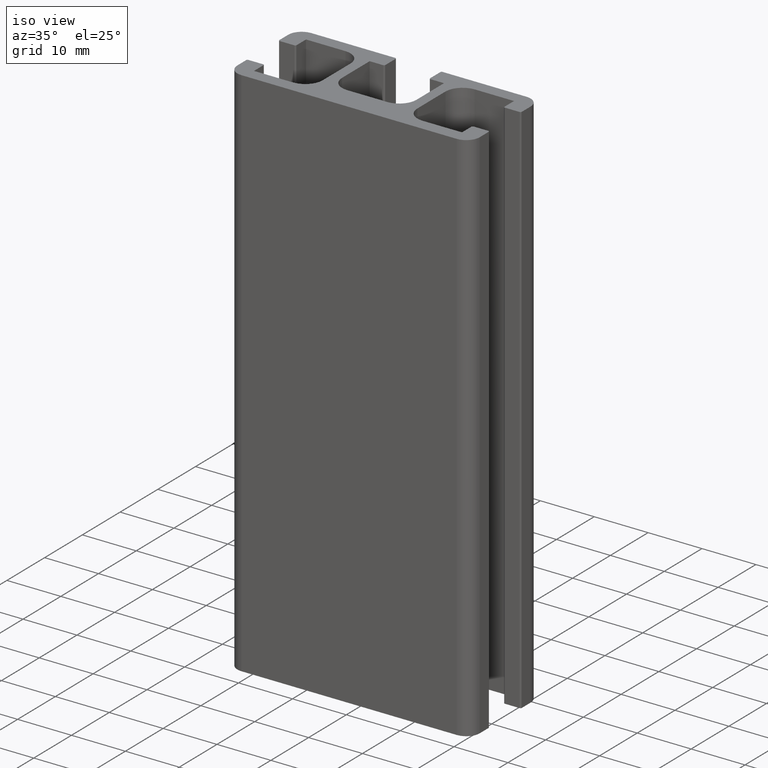
[diagram: clean part render]
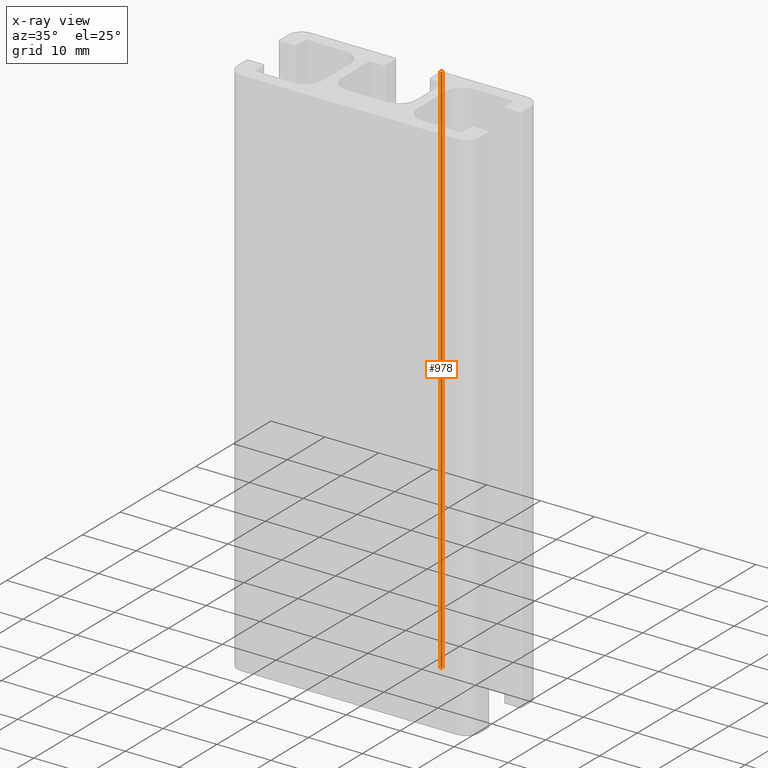
[diagram: x-ray — body ghosted, one internal face saturated and labeled with its STEP entity id]
A machine part, iso view, then the same camera in x-ray: the body is ghosted and one INTERNAL B-rep face — a face not visible from any outside direction — is saturated and labeled: STEP entity #978.
In plain terms, the highlighted cylindrical surface (edge-blend (fillet) strip) has radius 0.25 mm, axis along (0, 0, 1).
Its self-contained STEP definition (entity closure, byte-faithful):
#46=FACE_OUTER_BOUND('',#98,.T.);
#98=EDGE_LOOP('',(#659,#660,#661,#662));
#151=LINE('',#1442,#257);
#152=LINE('',#1445,#258);
#257=VECTOR('',#1141,100.);
#258=VECTOR('',#1144,100.);
#363=CIRCLE('',#1035,0.249999999999501);
#364=CIRCLE('',#1036,0.249999999999501);
#409=VERTEX_POINT('',#1438);
#410=VERTEX_POINT('',#1439);
#411=VERTEX_POINT('',#1441);
#412=VERTEX_POINT('',#1443);
#509=EDGE_CURVE('',#409,#410,#363,.T.);
#510=EDGE_CURVE('',#409,#411,#151,.T.);
#511=EDGE_CURVE('',#412,#411,#364,.T.);
#512=EDGE_CURVE('',#412,#410,#152,.T.);
#659=ORIENTED_EDGE('',*,*,#509,.F.);
#660=ORIENTED_EDGE('',*,*,#510,.T.);
#661=ORIENTED_EDGE('',*,*,#511,.F.);
#662=ORIENTED_EDGE('',*,*,#512,.T.);
#956=CYLINDRICAL_SURFACE('',#1034,0.249999999999501);
#978=ADVANCED_FACE('',(#46),#956,.T.);
#1034=AXIS2_PLACEMENT_3D('',#1437,#1137,#1138);
#1035=AXIS2_PLACEMENT_3D('',#1440,#1139,#1140);
#1036=AXIS2_PLACEMENT_3D('',#1444,#1142,#1143);
#1137=DIRECTION('center_axis',(0.,0.,1.));
#1138=DIRECTION('ref_axis',(-3.77475828386919E-14,-1.,0.));
#1139=DIRECTION('center_axis',(0.,0.,1.));
#1140=DIRECTION('ref_axis',(-3.77475828386919E-14,-1.,0.));
#1141=DIRECTION('',(0.,0.,-1.));
#1142=DIRECTION('center_axis',(0.,0.,-1.));
#1143=DIRECTION('ref_axis',(-3.77475828386919E-14,-1.,0.));
#1144=DIRECTION('',(0.,0.,1.));
#1437=CARTESIAN_POINT('Origin',(4.39999999999951,8.99999999999948,0.));
#1438=CARTESIAN_POINT('',(4.39999999999952,9.24999999998997,100.));
#1439=CARTESIAN_POINT('',(4.15,8.99999999999999,100.));
#1440=CARTESIAN_POINT('Origin',(4.39999999999951,8.99999999999948,100.));
#1441=CARTESIAN_POINT('',(4.39999999999952,9.24999999998997,0.));
#1442=CARTESIAN_POINT('',(4.39999999999951,9.25,0.));
#1443=CARTESIAN_POINT('',(4.15,8.99999999999999,0.));
#1444=CARTESIAN_POINT('Origin',(4.39999999999951,8.99999999999948,0.));
#1445=CARTESIAN_POINT('',(4.15,8.99999999999999,0.));